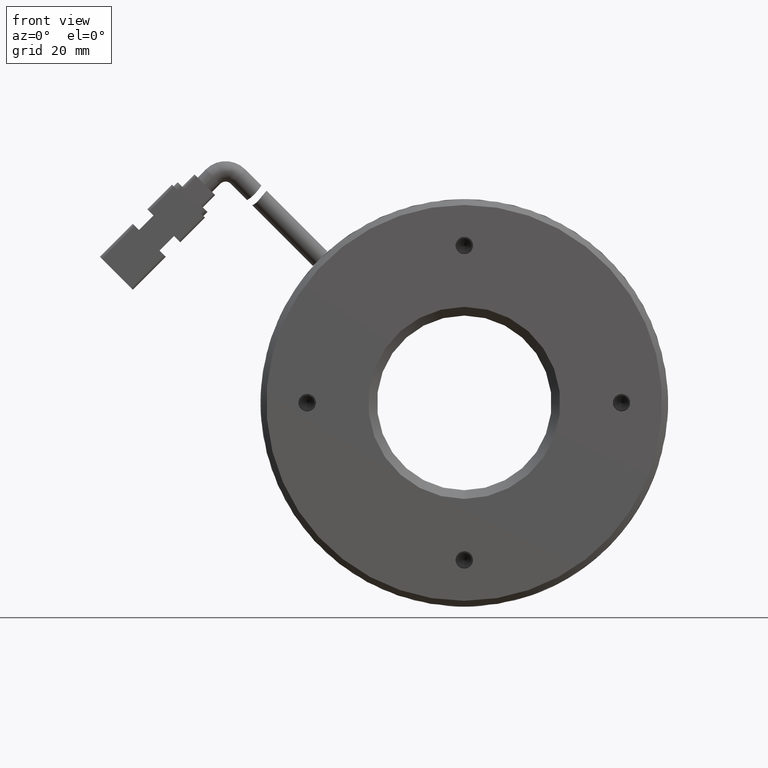
[diagram: clean part render]
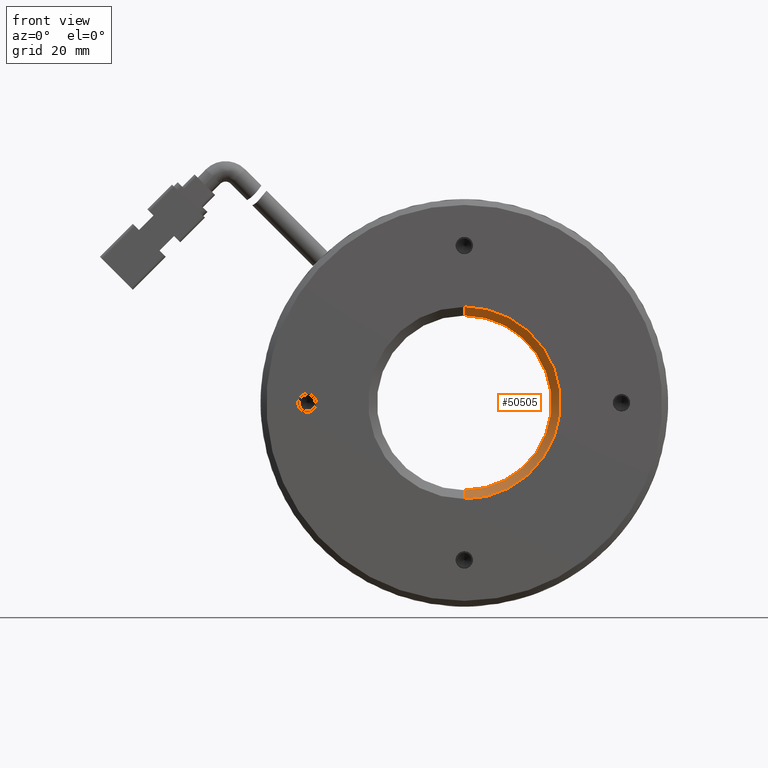
[diagram: same view with one face highlighted and labeled with its STEP entity id]
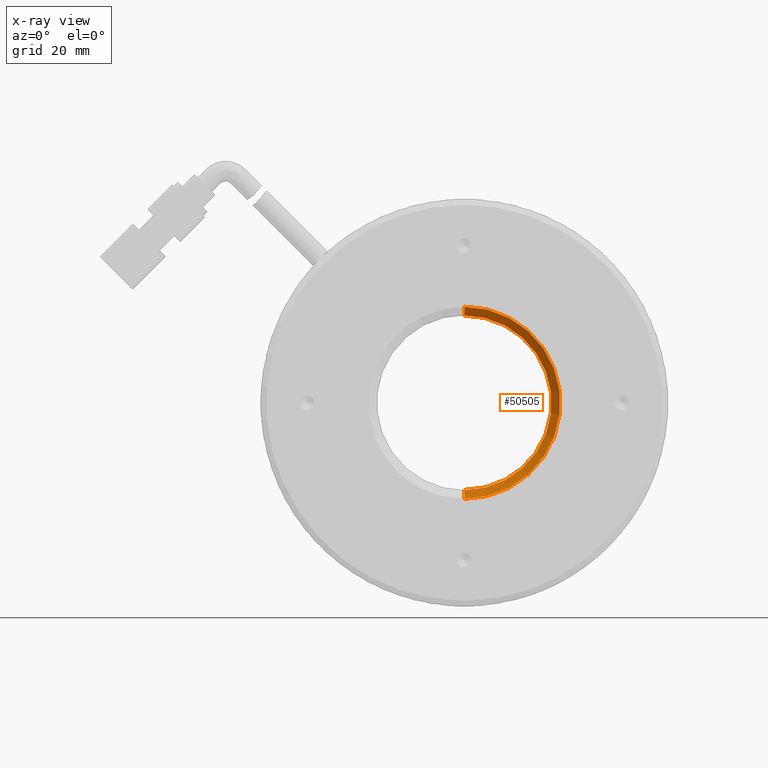
[diagram: x-ray of the same camera — body ghosted, the highlighted face saturated]
A machine part, front view. The second image highlights one B-rep face of the part: STEP entity #50505.
The next image is the same camera in x-ray: the body ghosted, the highlighted face saturated — about 0% of this face is hidden behind the body in this view.
In plain terms, the highlighted conical surface has half-angle 45 deg.
Its self-contained STEP definition (entity closure, byte-faithful):
#4054 = ORIENTED_EDGE ( 'NONE', *, *, #23947, .F. ) ;
#7988 = DIRECTION ( 'NONE',  ( 0.0000000000000000000, -0.7071067811865480200, -0.7071067811865470200 ) ) ;
#8914 = AXIS2_PLACEMENT_3D ( 'NONE', #80669, #38718, #87684 ) ;
#10353 = LINE ( 'NONE', #60382, #47548 ) ;
#18504 = DIRECTION ( 'NONE',  ( 8.659560562354926700E-017, -0.7071067811865480200, 0.7071067811865470200 ) ) ;
#18795 = CARTESIAN_POINT ( 'NONE',  ( -3.499229287090538600, 32.57623868994507900, 0.0000000000000000000 ) ) ;
#23947 = EDGE_CURVE ( 'NONE', #51920, #35992, #47134, .T. ) ;
#24793 = ORIENTED_EDGE ( 'NONE', *, *, #82341, .F. ) ;
#25823 = DIRECTION ( 'NONE',  ( 0.0000000000000000000, 0.0000000000000000000, -1.000000000000000000 ) ) ;
#28481 = VERTEX_POINT ( 'NONE', #76718 ) ;
#34560 = CIRCLE ( 'NONE', #36153, 15.00000000000001200 ) ;
#35992 = VERTEX_POINT ( 'NONE', #44361 ) ;
#36153 = AXIS2_PLACEMENT_3D ( 'NONE', #18795, #67693, #25823 ) ;
#37239 = FACE_OUTER_BOUND ( 'NONE', #82927, .T. ) ;
#37697 = LINE ( 'NONE', #56867, #56266 ) ;
#38718 = DIRECTION ( 'NONE',  ( -0.0000000000000000000, 1.000000000000000000, -0.0000000000000000000 ) ) ;
#42753 = EDGE_CURVE ( 'NONE', #28481, #35992, #37697, .T. ) ;
#44361 = CARTESIAN_POINT ( 'NONE',  ( -3.499229287090538600, 31.07623868994505800, -16.50000000000002800 ) ) ;
#47134 = CIRCLE ( 'NONE', #8914, 16.50000000000002800 ) ;
#47548 = VECTOR ( 'NONE', #18504, 1000.000000000000000 ) ;
#50505 = ADVANCED_FACE ( 'NONE', ( #37239 ), #56851, .F. ) ;
#51920 = VERTEX_POINT ( 'NONE', #53305 ) ;
#53305 = CARTESIAN_POINT ( 'NONE',  ( -3.499229287090536400, 31.07623868994505800, 16.50000000000002800 ) ) ;
#53596 = VERTEX_POINT ( 'NONE', #62722 ) ;
#56266 = VECTOR ( 'NONE', #7988, 1000.000000000000000 ) ;
#56851 = CONICAL_SURFACE ( 'NONE', #64206, 16.50000000000002800, 0.7853981633974476100 ) ;
#56867 = CARTESIAN_POINT ( 'NONE',  ( -3.499229287090538600, 31.07623868994505800, -16.50000000000002800 ) ) ;
#60382 = CARTESIAN_POINT ( 'NONE',  ( -3.499229287090536400, 31.07623868994505800, 16.50000000000002800 ) ) ;
#62722 = CARTESIAN_POINT ( 'NONE',  ( -3.499229287090538600, 32.57623868994507900, 15.00000000000001200 ) ) ;
#64206 = AXIS2_PLACEMENT_3D ( 'NONE', #77462, #84499, #70714 ) ;
#67693 = DIRECTION ( 'NONE',  ( -0.0000000000000000000, -1.000000000000000000, -0.0000000000000000000 ) ) ;
#68264 = ORIENTED_EDGE ( 'NONE', *, *, #42753, .T. ) ;
#68454 = EDGE_CURVE ( 'NONE', #28481, #53596, #34560, .T. ) ;
#70714 = DIRECTION ( 'NONE',  ( 0.0000000000000000000, 0.0000000000000000000, -1.000000000000000000 ) ) ;
#72398 = ORIENTED_EDGE ( 'NONE', *, *, #68454, .F. ) ;
#76718 = CARTESIAN_POINT ( 'NONE',  ( -3.499229287090536800, 32.57623868994507900, -15.00000000000001200 ) ) ;
#77462 = CARTESIAN_POINT ( 'NONE',  ( -3.499229287090538600, 31.07623868994505800, 0.0000000000000000000 ) ) ;
#80669 = CARTESIAN_POINT ( 'NONE',  ( -3.499229287090538600, 31.07623868994505800, 0.0000000000000000000 ) ) ;
#82341 = EDGE_CURVE ( 'NONE', #53596, #51920, #10353, .T. ) ;
#82927 = EDGE_LOOP ( 'NONE', ( #24793, #72398, #68264, #4054 ) ) ;
#84499 = DIRECTION ( 'NONE',  ( 0.0000000000000000000, -1.000000000000000000, 0.0000000000000000000 ) ) ;
#87684 = DIRECTION ( 'NONE',  ( 0.0000000000000000000, 0.0000000000000000000, -1.000000000000000000 ) ) ;